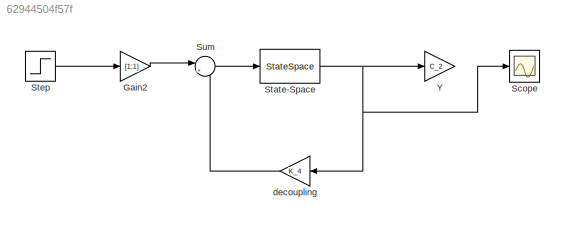
MODEL slx_62944504f57f
KIND model
CONFIG AbsTol = auto
CONFIG EnableMultiTasking = off
CONFIG FixedStep = auto
CONFIG MaxStep = auto
CONFIG MinStep = auto
CONFIG RelTol = 1e-3
CONFIG SampleTimeConstraint = Unconstrained
CONFIG SolverName = VariableStepAuto
CONFIG StartTime = 0.0
CONFIG StopTime = 10.0
BLOCK [Gain] Gain2
  Gain = [1;1]
  Multiplication = Matrix(K*u)
BLOCK [Scope] Scope
  Floating = off
  NumInputPorts = 1
  Ports = [1]
  ScopeSpecificationString = Simulink.scopes.TimeScopeBlockCfg('CurrentConfiguration', extmgr.ConfigurationSet(extmgr.Configuration('Core','General UI',true,'FigureColor',[1 1 1]),extmgr.Configuration('Core','Source UI',true),extmgr.Configuration('Sources','WiredSimulink',true),extmgr.Configuration('Visuals','Time Domain',true,'SerializedDisplays',{struct('MinYLimReal','-39286424283.49109','MaxYLimReal','4365158263.59507','YL...<+1852ch>
BLOCK [StateSpace] State-Space
  A = A
  B = B
  C = eye(6)
  D = zeros(6,2)
  InitialCondition = [0.2;-0.1;0.15;-1;0.8;0]
  Ports = [1, 1]
BLOCK [Step] Step
  SampleTime = 0
  Time = 0
BLOCK [Sum] Sum
  Inputs = |+-
  Ports = [2, 1]
BLOCK [Gain] Y
  Gain = C_2
  Multiplication = Matrix(K*u)
BLOCK [Gain] decoupling
  Gain = K_4
  Multiplication = Matrix(K*u)
  NameLocation = top
LINE Gain2:1 -> Sum:1
NET State-Space:1 -> Scope:1, Y:1, decoupling:1
LINE Step:1 -> Gain2:1
LINE Sum:1 -> State-Space:1
LINE decoupling:1 -> Sum:2
note: NET lines group one-source signal fan-out (src -> all destinations, sorted); 1:1 wires keep LINE
